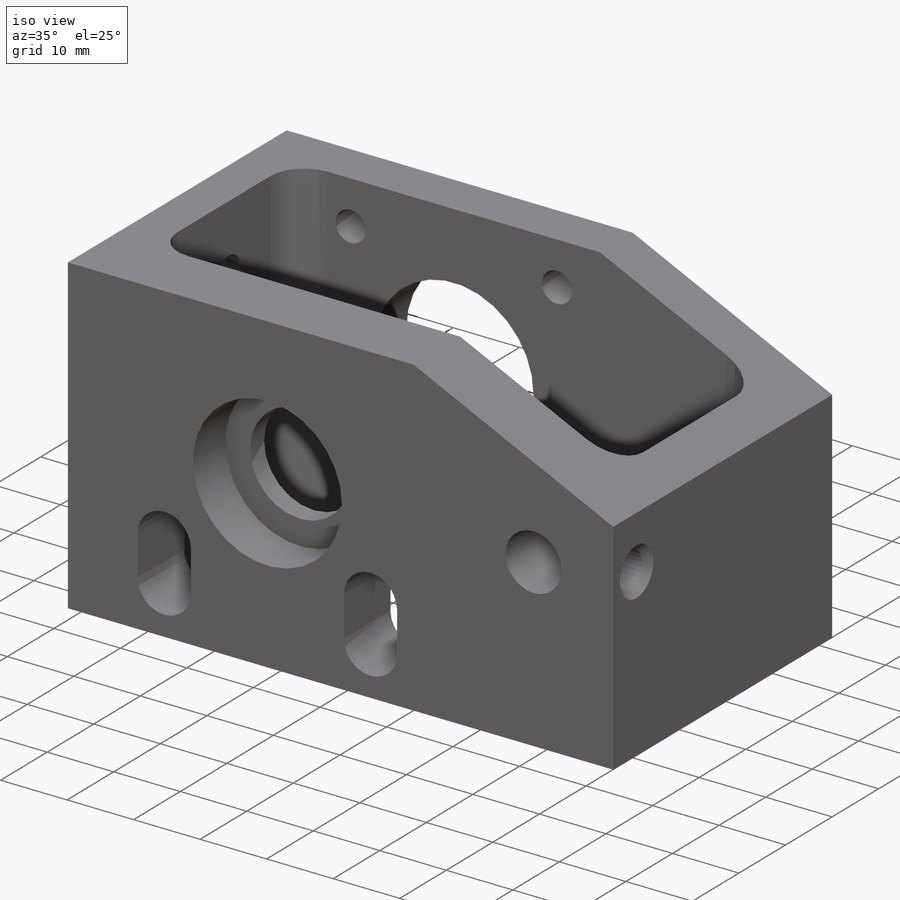
[diagram: iso view]
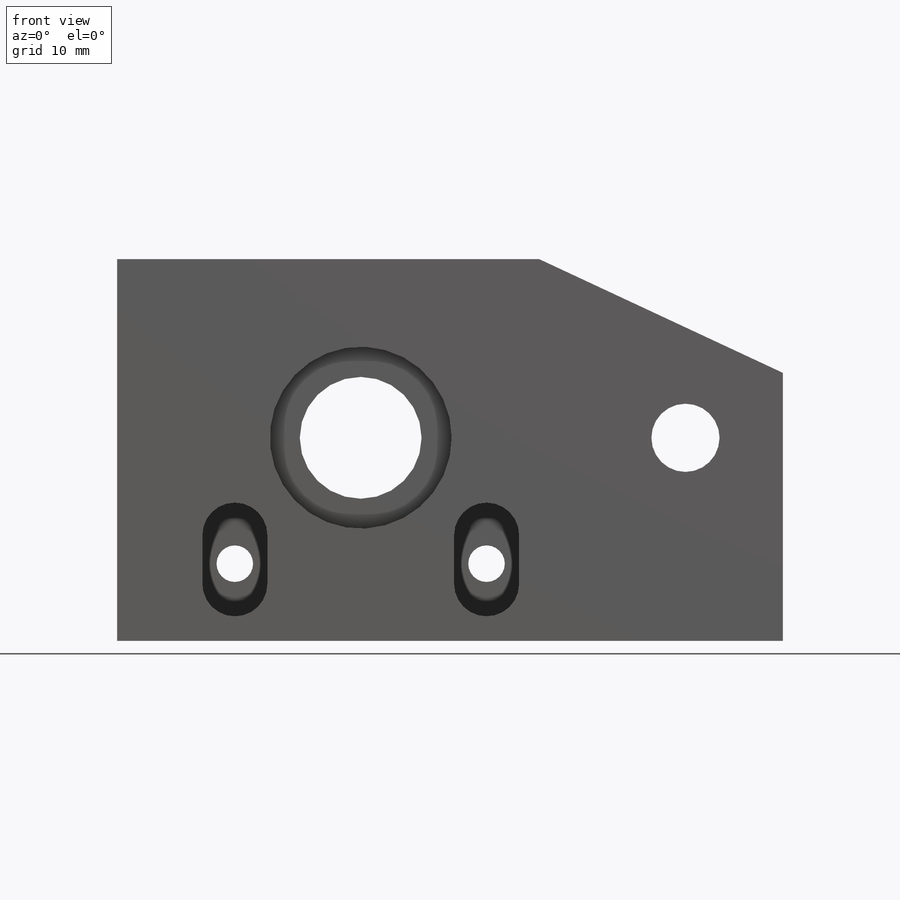
[diagram: front view]
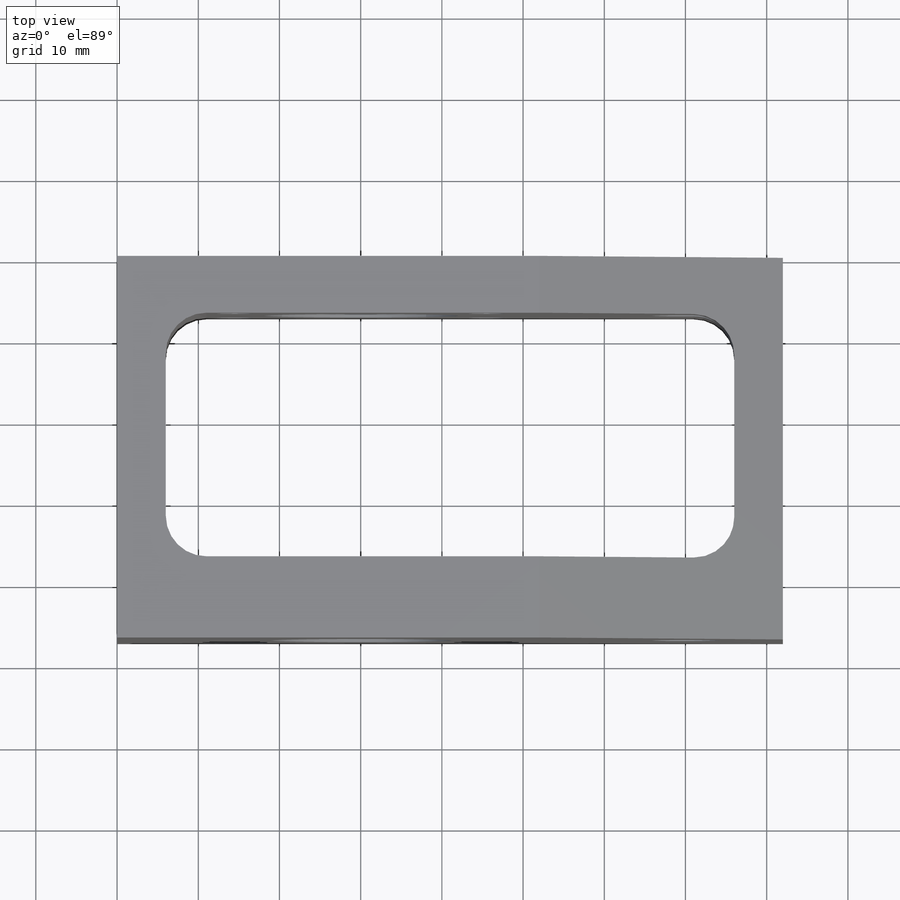
[diagram: top view]
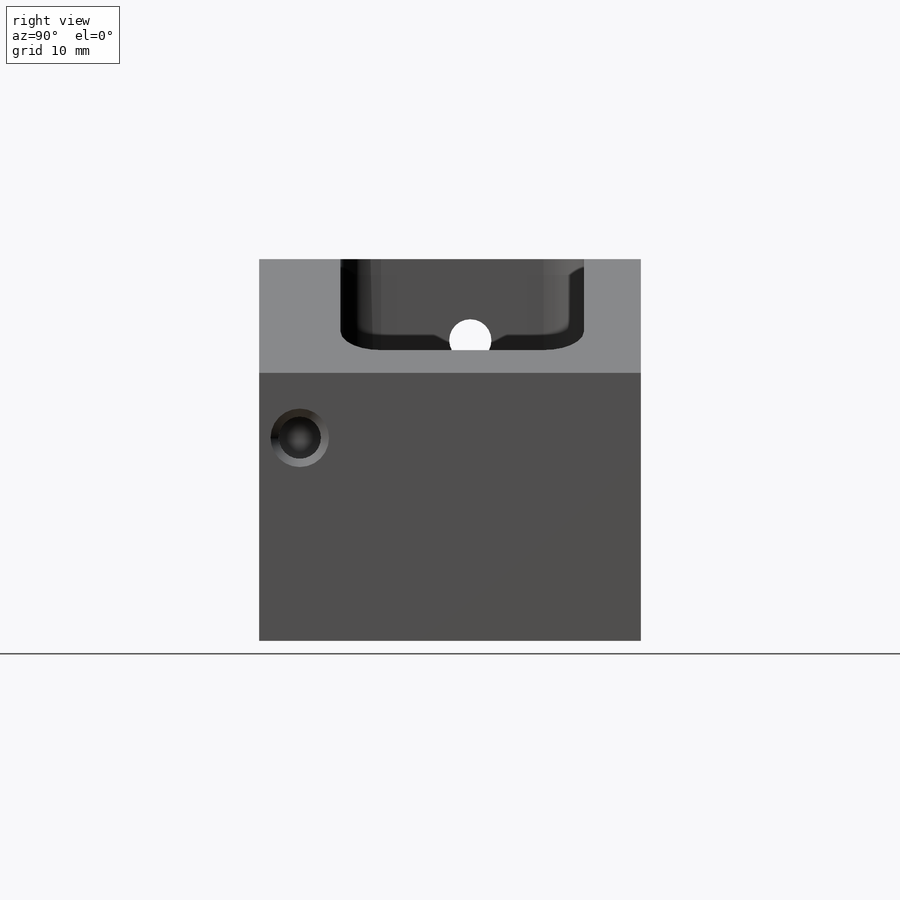
[diagram: right view]
SOLIDWORKS PART (.sldprt)
format: sldprt  version: not decoded by parser v0  size: 323,584 bytes
history: native  units: mm
features: sketch x8, cut_extrude x7, chamfer x2, material x1, extrude x1 (+11 scaffold rows collapsed)
feature tree (30):
  scaffold x11  (default folders/planes/origin — collapsed)
  material  "Material <not specified>"
  sketch  "Sketch1"  dims[D1=15.0mm D6=8.4mm D2=40.0mm D3=30.0mm D4=25.0mm D5=22.0mm D7=12.0mm D8=33.0mm D9=22.0mm]
  extrude  "Boss-Extrude1"  Depth=47mm
  sketch  "Sketch2"  dims[D1=22.4mm]
  cut_extrude  "Cut-Extrude1"  Depth=7mm
  sketch  "Sketch3"  dims[D1=4.5mm D4=24.0mm D2=31.0mm D3=31.0mm]
  cut_extrude  "Cut-Extrude2"  Depth=15mm
  sketch  "Sketch4"  dims[D5=5.0mm D1=7.0mm D2=10.0mm D3=6.0mm D4=6.0mm]
  cut_extrude  "Cut-Extrude3"  [1 undecoded]
  sketch  "Sketch6"  dims[D1=8.0mm D2=15.5mm D3=13.0mm D4=15.5mm D5=7.0mm]
  cut_extrude  "Cut-Extrude4"  Depth=20mm
  sketch  "Sketch7"  dims[D1=5.2mm D2=5.0mm]
  cut_extrude  "Cut-Extrude5"  Depth=10mm
  sketch  "Sketch8"  dims[D1=5.2mm D2=5.0mm D3=5.0mm D4=5.0mm D5=5.0mm]
  cut_extrude  "Cut-Extrude6"  Depth=8mm
  chamfer  "Chamfer1"  Distance=1mm Angle=45deg
  sketch  "Sketch9"  dims[D4=5.2mm D1=21.0mm D2=10.0mm D3=6.0mm]
  cut_extrude  "Cut-Extrude7"  Depth=10mm
  chamfer  "Chamfer2"  Distance=1mm Angle=45deg
decode coverage: 17 of 18 modeling features carry decoded parameters
note: 1 parameter value undecoded
note: suppression state not decoded; provenance and decode notes live in map.json
